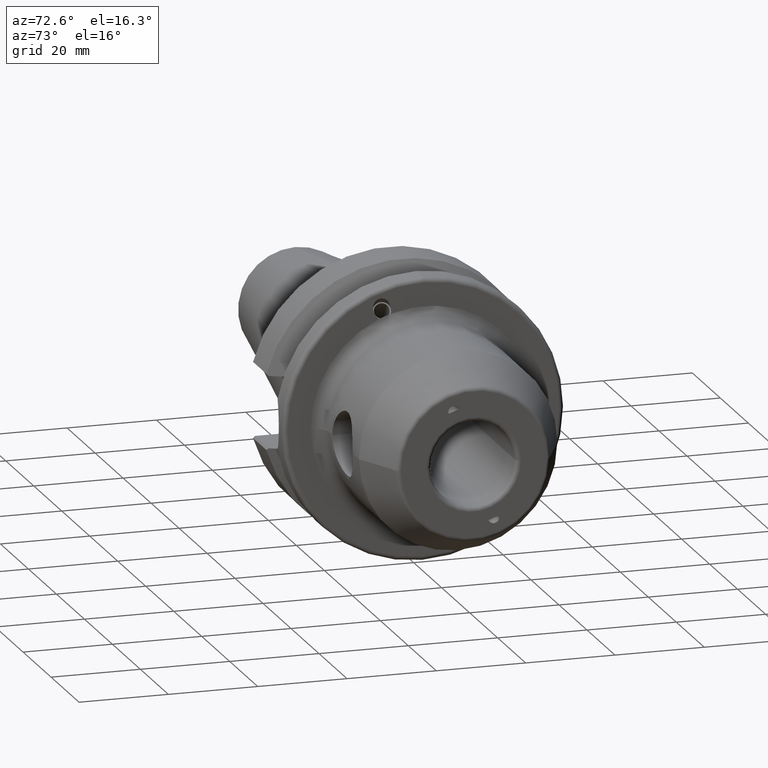
[diagram: clean part render]
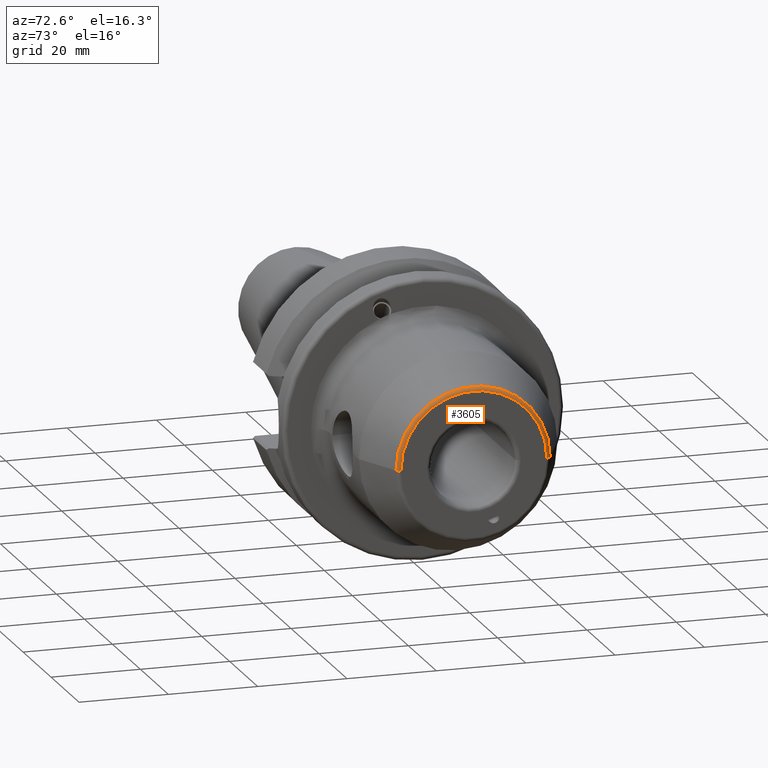
[diagram: same view with one face highlighted and labeled with its STEP entity id]
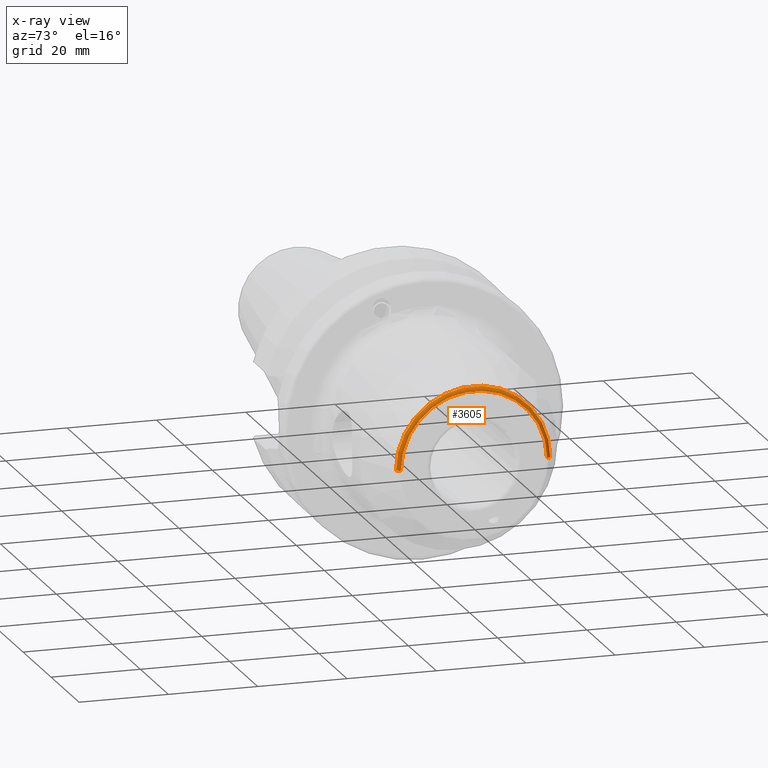
[diagram: x-ray of the same camera — body ghosted, the highlighted face saturated]
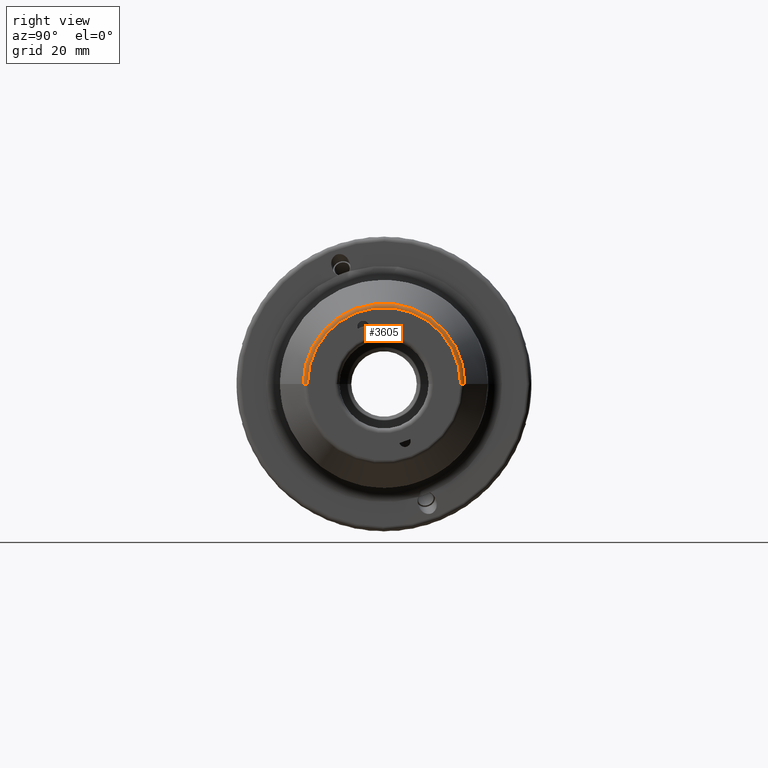
[diagram: same view with one face highlighted and labeled with its STEP entity id]
A machine part, auxiliary view. The second image highlights one B-rep face of the part: STEP entity #3605.
The next image is the same camera in x-ray: the body ghosted, the highlighted face saturated — about 0% of this face is hidden behind the body in this view.
A second angle (right view) of the same face is appended — the face is thin or edge-on in the first view.
In plain terms, the highlighted toroidal blend (fillet) surface has major radius 16.3629 mm and minor (blend) radius 1 mm.
Its self-contained STEP definition (entity closure, byte-faithful):
#1345=CARTESIAN_POINT('',(6.2E1,-1.636292973919E1,0.E0));
#1346=DIRECTION('',(0.E0,0.E0,-1.E0));
#1347=DIRECTION('',(1.E0,0.E0,0.E0));
#1348=AXIS2_PLACEMENT_3D('',#1345,#1346,#1347);
#1355=CARTESIAN_POINT('',(6.2E1,1.636292973919E1,0.E0));
#1356=DIRECTION('',(0.E0,0.E0,1.E0));
#1357=DIRECTION('',(1.E0,0.E0,0.E0));
#1358=AXIS2_PLACEMENT_3D('',#1355,#1356,#1357);
#1360=CARTESIAN_POINT('',(6.3E1,0.E0,0.E0));
#1361=DIRECTION('',(-1.E0,0.E0,0.E0));
#1362=DIRECTION('',(0.E0,-1.E0,0.E0));
#1363=AXIS2_PLACEMENT_3D('',#1360,#1361,#1362);
#1365=CARTESIAN_POINT('',(6.242261826174E1,0.E0,0.E0));
#1366=DIRECTION('',(-1.E0,0.E0,0.E0));
#1367=DIRECTION('',(0.E0,-1.E0,0.E0));
#1368=AXIS2_PLACEMENT_3D('',#1365,#1366,#1367);
#2086=CARTESIAN_POINT('',(6.3E1,-1.636292973919E1,0.E0));
#2087=CARTESIAN_POINT('',(6.242261826174E1,-1.726923752623E1,0.E0));
#2088=VERTEX_POINT('',#2086);
#2089=VERTEX_POINT('',#2087);
#2102=CARTESIAN_POINT('',(6.3E1,1.636292973919E1,0.E0));
#2103=CARTESIAN_POINT('',(6.242261826174E1,1.726923752623E1,0.E0));
#2104=VERTEX_POINT('',#2102);
#2105=VERTEX_POINT('',#2103);
#3593=CARTESIAN_POINT('',(6.2E1,0.E0,0.E0));
#3594=DIRECTION('',(-1.E0,0.E0,0.E0));
#3595=DIRECTION('',(0.E0,-1.E0,0.E0));
#3596=AXIS2_PLACEMENT_3D('',#3593,#3594,#3595);
#3597=TOROIDAL_SURFACE('',#3596,1.636292973919E1,1.E0);
#3598=ORIENTED_EDGE('',*,*,#3583,.T.);
#3600=ORIENTED_EDGE('',*,*,#3599,.T.);
#3601=ORIENTED_EDGE('',*,*,#3586,.F.);
#3602=ORIENTED_EDGE('',*,*,#3425,.F.);
#3603=EDGE_LOOP('',(#3598,#3600,#3601,#3602));
#3604=FACE_OUTER_BOUND('',#3603,.F.);
#3605=ADVANCED_FACE('',(#3604),#3597,.T.);
#1349=CIRCLE('',#1348,1.E0);
#1359=CIRCLE('',#1358,1.E0);
#1364=CIRCLE('',#1363,1.636292973919E1);
#1369=CIRCLE('',#1368,1.726923752623E1);
#3425=EDGE_CURVE('',#2088,#2104,#1364,.T.);
#3583=EDGE_CURVE('',#2088,#2089,#1349,.T.);
#3586=EDGE_CURVE('',#2104,#2105,#1359,.T.);
#3599=EDGE_CURVE('',#2089,#2105,#1369,.T.);